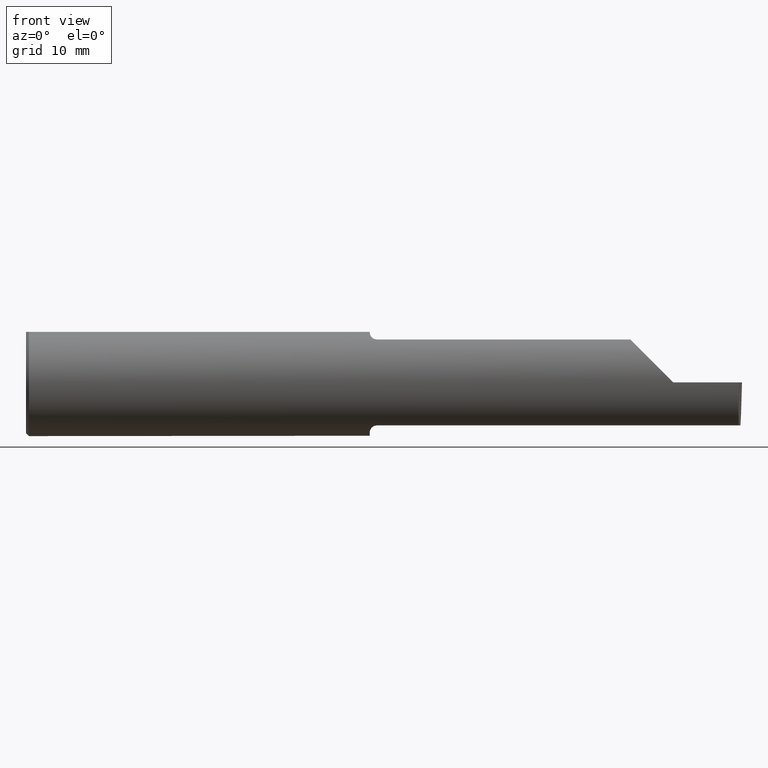
[diagram: clean part render]
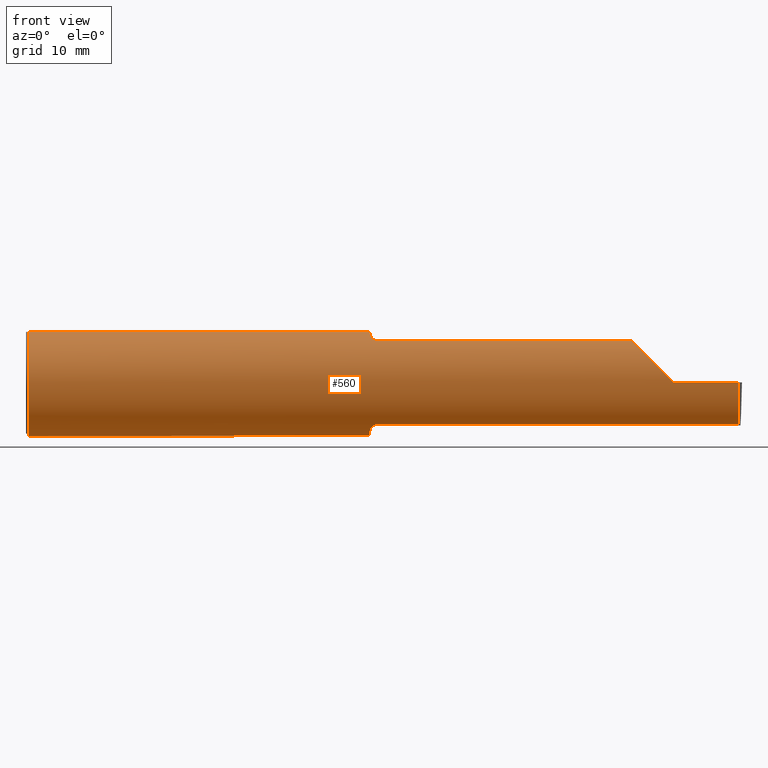
[diagram: same view with one face highlighted and labeled with its STEP entity id]
A machine part, front view. The second image highlights one B-rep face of the part: STEP entity #560.
In plain terms, the highlighted cylindrical surface (partial cylindrical patch) has radius 4.7587 mm, axis along (-1, -0, -0).
Its self-contained STEP definition (entity closure, byte-faithful):
#22 = CARTESIAN_POINT ( 'NONE',  ( 2.113883229301068756, -0.1172600179964011363, 0.1461167706989299764 ) ) ;
#26 = CARTESIAN_POINT ( 'NONE',  ( 2.260000000000000231, -0.1873499999999999888, 2.939152317953647352E-17 ) ) ;
#34 = EDGE_CURVE ( 'NONE', #580, #468, #623, .T. ) ;
#37 = CARTESIAN_POINT ( 'NONE',  ( 2.488471823259917226, -0.1172600179964006922, -0.1461167706989302817 ) ) ;
#41 = CARTESIAN_POINT ( 'NONE',  ( 2.487529306701961485, -0.1623470442677541203, -0.1099340280425338268 ) ) ;
#44 = CARTESIAN_POINT ( 'NONE',  ( 0.01000000000000013205, 0.000000000000000000, -0.1873499999999999888 ) ) ;
#46 = ORIENTED_EDGE ( 'NONE', *, *, #226, .T. ) ;
#55 = DIRECTION ( 'NONE',  ( 1.000000000000000000, 0.000000000000000000, 0.000000000000000000 ) ) ;
#68 = VERTEX_POINT ( 'NONE', #352 ) ;
#69 = LINE ( 'NONE', #351, #421 ) ;
#72 = CIRCLE ( 'NONE', #224, 0.1873499999999999888 ) ;
#75 = B_SPLINE_CURVE_WITH_KNOTS ( 'NONE', 3,
 ( #616, #188, #681, #404, #355, #131, #173, #511, #123, #566, #413, #613 ),
 .UNSPECIFIED., .F., .F.,
 ( 4, 2, 2, 2, 2, 4 ),
 ( 4.423516731080811751E-05, 0.0004615475116586728187, 0.0008788598560065375266, 0.001296172200354402289, 0.001504828372528334507, 0.001713484544702266943 ),
 .UNSPECIFIED. ) ;
#88 = ORIENTED_EDGE ( 'NONE', *, *, #667, .F. ) ;
#89 = DIRECTION ( 'NONE',  ( 1.000000000000000000, 0.000000000000000000, 0.000000000000000000 ) ) ;
#90 = CARTESIAN_POINT ( 'NONE',  ( 1.213203859946833996, -0.1120371980050639676, -0.1501764597936557921 ) ) ;
#93 = DIRECTION ( 'NONE',  ( 1.000000000000000000, 8.453855317547640226E-17, 0.000000000000000000 ) ) ;
#101 = CARTESIAN_POINT ( 'NONE',  ( 1.818402845000000045, -0.1172600179964007477, 0.1461167706989302817 ) ) ;
#123 = CARTESIAN_POINT ( 'NONE',  ( 1.215004157323697154, -0.1137044537483318657, 0.1489098419202427026 ) ) ;
#128 = CARTESIAN_POINT ( 'NONE',  ( 2.150065971957465294, -0.1623470442677543146, 0.1099340280425333688 ) ) ;
#131 = CARTESIAN_POINT ( 'NONE',  ( 1.206287624083520527, -0.1021858045380147351, 0.1571187174372874473 ) ) ;
#147 = CARTESIAN_POINT ( 'NONE',  ( 3.749399456654646757E-32, -0.1873499999999999610, 3.061616997868383634E-16 ) ) ;
#149 = CARTESIAN_POINT ( 'NONE',  ( 2.488576259503493926, -0.1873499999999999888, 0.000000000000000000 ) ) ;
#150 = ORIENTED_EDGE ( 'NONE', *, *, #293, .F. ) ;
#161 = EDGE_CURVE ( 'NONE', #176, #399, #223, .T. ) ;
#167 = LINE ( 'NONE', #322, #397 ) ;
#173 = CARTESIAN_POINT ( 'NONE',  ( 1.208475602106621638, -0.1064978748893407323, 0.1542035505680382224 ) ) ;
#174 = VECTOR ( 'NONE', #93, 39.37007874015748143 ) ;
#176 = VERTEX_POINT ( 'NONE', #575 ) ;
#180 = CARTESIAN_POINT ( 'NONE',  ( 0.01000000000000013205, -0.06325108694718235836, 0.1763499999999999235 ) ) ;
#181 = EDGE_CURVE ( 'NONE', #582, #468, #366, .T. ) ;
#185 = AXIS2_PLACEMENT_3D ( 'NONE', #636, #89, #640 ) ;
#188 = CARTESIAN_POINT ( 'NONE',  ( 1.199999999999999289, -0.07367581953296703512, 0.1723443821957854061 ) ) ;
#189 = CARTESIAN_POINT ( 'NONE',  ( 2.202189699843947857, -0.1873500000000000165, 0.05781030015605082700 ) ) ;
#196 = CARTESIAN_POINT ( 'NONE',  ( 1.206304331342287650, -0.1022198306720692035, -0.1570962426853817762 ) ) ;
#200 = LINE ( 'NONE', #536, #346 ) ;
#206 = VERTEX_POINT ( 'NONE', #585 ) ;
#211 = ORIENTED_EDGE ( 'NONE', *, *, #700, .T. ) ;
#213 =( BOUNDED_CURVE ( )  B_SPLINE_CURVE ( 3, ( #37, #41, #590, #149 ),
 .UNSPECIFIED., .F., .T. ) 
 B_SPLINE_CURVE_WITH_KNOTS ( ( 4, 4 ),
 ( 5.852427379562186616, 6.746954780470634461 ),
 .UNSPECIFIED. ) 
 CURVE ( )  GEOMETRIC_REPRESENTATION_ITEM ( )  RATIONAL_B_SPLINE_CURVE ( ( 1.000000000000000000, 0.9344226172588802060, 0.9344226172588802060, 1.000000000000000000 ) ) 
 REPRESENTATION_ITEM ( '' )  );
#214 = CIRCLE ( 'NONE', #707, 0.1873499999999999888 ) ;
#217 = ORIENTED_EDGE ( 'NONE', *, *, #230, .F. ) ;
#218 = CARTESIAN_POINT ( 'NONE',  ( 1.199999999999999956, -0.06851976604679066440, 0.1743704796142198643 ) ) ;
#219 = DIRECTION ( 'NONE',  ( -1.000000000000000000, -8.453855317547640226E-17, -0.000000000000000000 ) ) ;
#223 = B_SPLINE_CURVE_WITH_KNOTS ( 'NONE', 3,
 ( #637, #655, #696, #650, #90, #318, #196, #522, #701, #268, #425, #485 ),
 .UNSPECIFIED., .F., .F.,
 ( 4, 2, 2, 2, 2, 4 ),
 ( 1.967976973692733563E-07, 0.0002120314145722264321, 0.0004238660314470835545, 0.0008475352651967978535, 0.001271204498946512315, 0.001694873732696226560 ),
 .UNSPECIFIED. ) ;
#224 = AXIS2_PLACEMENT_3D ( 'NONE', #550, #55, #705 ) ;
#226 = EDGE_CURVE ( 'NONE', #68, #606, #213, .T. ) ;
#230 = EDGE_CURVE ( 'NONE', #680, #682, #214, .T. ) ;
#245 = CARTESIAN_POINT ( 'NONE',  ( 2.113883229301068756, -0.1172600179964011363, 0.1461167706989299764 ) ) ;
#255 = CYLINDRICAL_SURFACE ( 'NONE', #323, 0.1873499999999999888 ) ;
#260 = CARTESIAN_POINT ( 'NONE',  ( 0.01000000000000013205, 0.06325108694718235836, 0.1763499999999999235 ) ) ;
#268 = CARTESIAN_POINT ( 'NONE',  ( 1.200358271039144276, -0.07873626113568089890, -0.1700887912276896063 ) ) ;
#283 = DIRECTION ( 'NONE',  ( 1.000000000000000000, 0.000000000000000000, 0.000000000000000000 ) ) ;
#293 = EDGE_CURVE ( 'NONE', #68, #176, #167, .T. ) ;
#296 = ORIENTED_EDGE ( 'NONE', *, *, #34, .T. ) ;
#312 = CIRCLE ( 'NONE', #185, 0.1873499999999999888 ) ;
#314 = CARTESIAN_POINT ( 'NONE',  ( 1.225000000000000089, -0.1172600179964007477, 0.1461167706989301984 ) ) ;
#318 = CARTESIAN_POINT ( 'NONE',  ( 1.208439486659306672, -0.1064616213911159376, -0.1542305641651500192 ) ) ;
#322 = CARTESIAN_POINT ( 'NONE',  ( 1.818402845000000045, -0.1172600179964007477, -0.1461167706989302817 ) ) ;
#323 = AXIS2_PLACEMENT_3D ( 'NONE', #521, #695, #420 ) ;
#324 = ORIENTED_EDGE ( 'NONE', *, *, #161, .F. ) ;
#329 = DIRECTION ( 'NONE',  ( 0.000000000000000000, 1.000000000000000000, 0.000000000000000000 ) ) ;
#346 = VECTOR ( 'NONE', #684, 39.37007874015748143 ) ;
#351 = CARTESIAN_POINT ( 'NONE',  ( 0.000000000000000000, -0.06325108694718235836, 0.1763499999999999235 ) ) ;
#352 = CARTESIAN_POINT ( 'NONE',  ( 2.488471823259917226, -0.1172600179964006922, -0.1461167706989302817 ) ) ;
#355 = CARTESIAN_POINT ( 'NONE',  ( 1.202945243422983479, -0.09312071749437436652, 0.1626553472577906001 ) ) ;
#364 = DIRECTION ( 'NONE',  ( -1.000000000000000000, -0.000000000000000000, -0.000000000000000000 ) ) ;
#366 = LINE ( 'NONE', #101, #174 ) ;
#368 = CARTESIAN_POINT ( 'NONE',  ( 2.260000000000000231, -0.1873499999999999888, 2.939152317953647352E-17 ) ) ;
#369 = DIRECTION ( 'NONE',  ( 1.000000000000000000, 8.453855317547640226E-17, 0.000000000000000000 ) ) ;
#385 = AXIS2_PLACEMENT_3D ( 'NONE', #497, #601, #329 ) ;
#397 = VECTOR ( 'NONE', #219, 39.37007874015748143 ) ;
#399 = VERTEX_POINT ( 'NONE', #670 ) ;
#404 = CARTESIAN_POINT ( 'NONE',  ( 1.201829077486399999, -0.08839624499054658802, 0.1652742498708036356 ) ) ;
#413 = CARTESIAN_POINT ( 'NONE',  ( 1.222161949849307927, -0.1172600179964063127, 0.1461167706989258686 ) ) ;
#415 = FACE_OUTER_BOUND ( 'NONE', #450, .T. ) ;
#417 = EDGE_CURVE ( 'NONE', #430, #680, #69, .T. ) ;
#420 = DIRECTION ( 'NONE',  ( 0.000000000000000000, 0.000000000000000000, 1.000000000000000000 ) ) ;
#421 = VECTOR ( 'NONE', #283, 39.37007874015748143 ) ;
#425 = CARTESIAN_POINT ( 'NONE',  ( 1.199999999999999956, -0.07368234487347199990, -0.1723418180300747837 ) ) ;
#426 = ORIENTED_EDGE ( 'NONE', *, *, #417, .F. ) ;
#430 = VERTEX_POINT ( 'NONE', #180 ) ;
#450 = EDGE_LOOP ( 'NONE', ( #150, #46, #479, #296, #591, #708, #217, #426, #486, #211, #473, #88, #324 ) ) ;
#468 = VERTEX_POINT ( 'NONE', #22 ) ;
#473 = ORIENTED_EDGE ( 'NONE', *, *, #542, .F. ) ;
#476 = CARTESIAN_POINT ( 'NONE',  ( 2.488576259503493926, -0.1873499999999999888, 0.000000000000000000 ) ) ;
#479 = ORIENTED_EDGE ( 'NONE', *, *, #517, .T. ) ;
#480 = EDGE_CURVE ( 'NONE', #682, #582, #75, .T. ) ;
#485 = CARTESIAN_POINT ( 'NONE',  ( 1.199999999999999956, -0.06851976604679066440, -0.1743704796142198643 ) ) ;
#486 = ORIENTED_EDGE ( 'NONE', *, *, #526, .T. ) ;
#497 = CARTESIAN_POINT ( 'NONE',  ( 1.199999999999999956, 0.000000000000000000, 0.000000000000000000 ) ) ;
#511 = CARTESIAN_POINT ( 'NONE',  ( 1.213163223656403611, -0.1119926267047279128, 0.1502091925606061917 ) ) ;
#517 = EDGE_CURVE ( 'NONE', #606, #580, #619, .T. ) ;
#521 = CARTESIAN_POINT ( 'NONE',  ( 0.000000000000000000, 0.000000000000000000, 0.000000000000000000 ) ) ;
#522 = CARTESIAN_POINT ( 'NONE',  ( 1.202960551809340251, -0.09317341542745753713, -0.1626248379125196653 ) ) ;
#526 = EDGE_CURVE ( 'NONE', #430, #643, #312, .T. ) ;
#529 = CIRCLE ( 'NONE', #385, 0.1873499999999999888 ) ;
#536 = CARTESIAN_POINT ( 'NONE',  ( 0.000000000000000000, 0.06325108694718235836, 0.1763499999999999235 ) ) ;
#542 = EDGE_CURVE ( 'NONE', #206, #587, #200, .T. ) ;
#550 = CARTESIAN_POINT ( 'NONE',  ( 0.01000000000000013205, 0.000000000000000000, 0.000000000000000000 ) ) ;
#560 = ADVANCED_FACE ( 'NONE', ( #415 ), #255, .T. ) ;
#566 = CARTESIAN_POINT ( 'NONE',  ( 1.219481469043492083, -0.1163560528186168425, 0.1468472430636321435 ) ) ;
#575 = CARTESIAN_POINT ( 'NONE',  ( 1.225000000000000089, -0.1172600179964007339, -0.1461167706989301984 ) ) ;
#580 = VERTEX_POINT ( 'NONE', #368 ) ;
#581 = DIRECTION ( 'NONE',  ( 0.000000000000000000, 1.000000000000000000, 0.000000000000000000 ) ) ;
#582 = VERTEX_POINT ( 'NONE', #314 ) ;
#585 = CARTESIAN_POINT ( 'NONE',  ( 1.199999999999999956, 0.06325108694718235836, 0.1763499999999999235 ) ) ;
#587 = VERTEX_POINT ( 'NONE', #260 ) ;
#590 = CARTESIAN_POINT ( 'NONE',  ( 2.487566561880238947, -0.1873500000000000165, -0.05781030015605114619 ) ) ;
#591 = ORIENTED_EDGE ( 'NONE', *, *, #181, .F. ) ;
#593 = CARTESIAN_POINT ( 'NONE',  ( 1.199999999999999956, -0.06325108694718287183, 0.1763499999999999235 ) ) ;
#598 = VECTOR ( 'NONE', #364, 39.37007874015748143 ) ;
#601 = DIRECTION ( 'NONE',  ( 1.000000000000000000, 8.453855317547640226E-17, 0.000000000000000000 ) ) ;
#606 = VERTEX_POINT ( 'NONE', #476 ) ;
#613 = CARTESIAN_POINT ( 'NONE',  ( 1.225000000000000089, -0.1172600179964007477, 0.1461167706989301984 ) ) ;
#616 = CARTESIAN_POINT ( 'NONE',  ( 1.199999999999999956, -0.06851976604679066440, 0.1743704796142198643 ) ) ;
#619 = LINE ( 'NONE', #147, #598 ) ;
#623 =( BOUNDED_CURVE ( )  B_SPLINE_CURVE ( 3, ( #26, #189, #128, #245 ),
 .UNSPECIFIED., .F., .F. ) 
 B_SPLINE_CURVE_WITH_KNOTS ( ( 4, 4 ),
 ( 4.712388980384688786, 5.606916381293133966 ),
 .UNSPECIFIED. ) 
 CURVE ( )  GEOMETRIC_REPRESENTATION_ITEM ( )  RATIONAL_B_SPLINE_CURVE ( ( 1.000000000000000000, 0.9344226172588806500, 0.9344226172588806500, 1.000000000000000000 ) ) 
 REPRESENTATION_ITEM ( '' )  );
#636 = CARTESIAN_POINT ( 'NONE',  ( 0.01000000000000013205, 0.000000000000000000, 0.000000000000000000 ) ) ;
#637 = CARTESIAN_POINT ( 'NONE',  ( 1.225000000000000089, -0.1172600179964007339, -0.1461167706989301984 ) ) ;
#640 = DIRECTION ( 'NONE',  ( 0.000000000000000000, 0.000000000000000000, -1.000000000000000000 ) ) ;
#643 = VERTEX_POINT ( 'NONE', #44 ) ;
#650 = CARTESIAN_POINT ( 'NONE',  ( 1.215028532764138580, -0.1137241120808236416, -0.1488947809299402680 ) ) ;
#655 = CARTESIAN_POINT ( 'NONE',  ( 1.222174967710399462, -0.1172600179964008171, -0.1461167706989301707 ) ) ;
#667 = EDGE_CURVE ( 'NONE', #399, #206, #529, .T. ) ;
#670 = CARTESIAN_POINT ( 'NONE',  ( 1.199999999999999956, -0.06851976604679066440, -0.1743704796142198643 ) ) ;
#680 = VERTEX_POINT ( 'NONE', #593 ) ;
#681 = CARTESIAN_POINT ( 'NONE',  ( 1.200353553376444893, -0.07868116735658678418, 0.1701139256562800850 ) ) ;
#682 = VERTEX_POINT ( 'NONE', #218 ) ;
#684 = DIRECTION ( 'NONE',  ( -1.000000000000000000, -0.000000000000000000, -0.000000000000000000 ) ) ;
#688 = CARTESIAN_POINT ( 'NONE',  ( 1.199999999999999956, 0.000000000000000000, 0.000000000000000000 ) ) ;
#695 = DIRECTION ( 'NONE',  ( -1.000000000000000000, -0.000000000000000000, -0.000000000000000000 ) ) ;
#696 = CARTESIAN_POINT ( 'NONE',  ( 1.219511795768554840, -0.1163687266324236330, -0.1468371510166787686 ) ) ;
#700 = EDGE_CURVE ( 'NONE', #643, #587, #72, .T. ) ;
#701 = CARTESIAN_POINT ( 'NONE',  ( 1.201843912362378086, -0.08846956905169094110, -0.1652353808078971809 ) ) ;
#705 = DIRECTION ( 'NONE',  ( 0.000000000000000000, 0.000000000000000000, -1.000000000000000000 ) ) ;
#707 = AXIS2_PLACEMENT_3D ( 'NONE', #688, #369, #581 ) ;
#708 = ORIENTED_EDGE ( 'NONE', *, *, #480, .F. ) ;